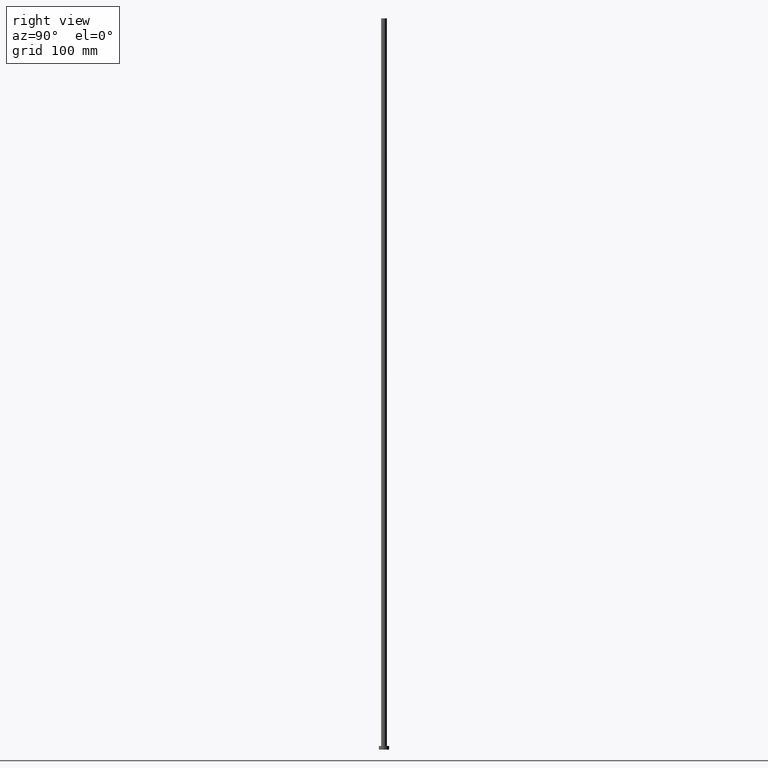
[diagram: clean part render]
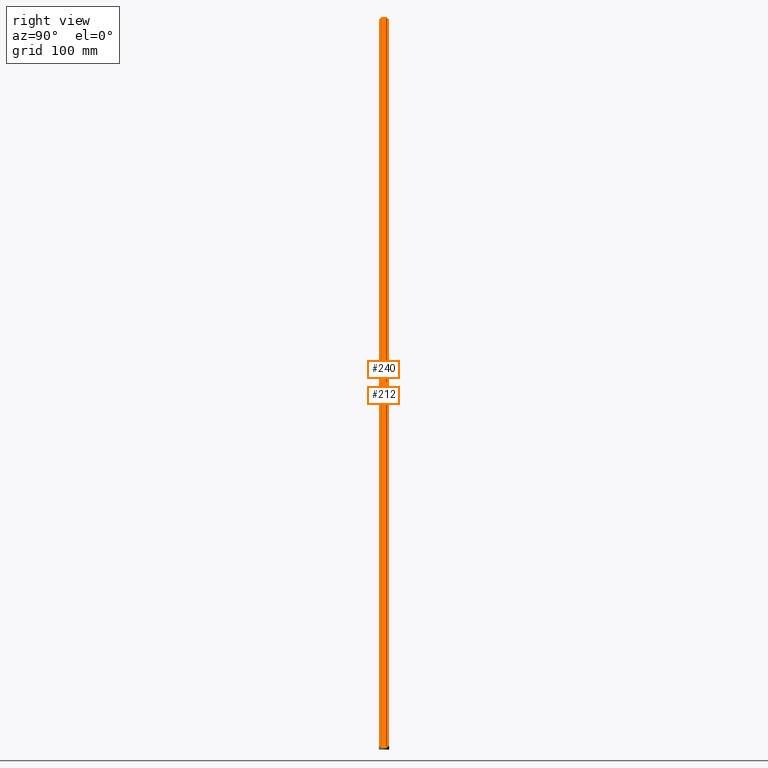
[diagram: same view with one multi-face feature highlighted, each face labeled with its STEP entity id]
A machine part, right view. The highlighted faces form ONE feature: a constant-radius fillet chain: 2 tangent blend faces with common blend radius 4 mm. The faces share edges in the B-rep.
Their STEP definitions:
[1] entity #240 (Cylinder):
#7 = CARTESIAN_POINT ( 'NONE',  ( 0.000000000000000000, 0.000000000000000000, 1000.000000000000000 ) ) ;
#14 = FACE_OUTER_BOUND ( 'NONE', #57, .T. ) ;
#17 = CIRCLE ( 'NONE', #30, 4.000000000000000000 ) ;
#30 = AXIS2_PLACEMENT_3D ( 'NONE', #49, #226, #172 ) ;
#37 = LINE ( 'NONE', #71, #145 ) ;
#44 = VERTEX_POINT ( 'NONE', #136 ) ;
#49 = CARTESIAN_POINT ( 'NONE',  ( 0.000000000000000000, 0.000000000000000000, 5.000000000000000000 ) ) ;
#55 = LINE ( 'NONE', #209, #63 ) ;
#57 = EDGE_LOOP ( 'NONE', ( #239, #217, #175, #237 ) ) ;
#63 = VECTOR ( 'NONE', #128, 1000.000000000000000 ) ;
#71 = CARTESIAN_POINT ( 'NONE',  ( -4.000000000000000000, 0.000000000000000000, 1000.000000000000000 ) ) ;
#76 = DIRECTION ( 'NONE',  ( 0.000000000000000000, 0.000000000000000000, 1.000000000000000000 ) ) ;
#82 = AXIS2_PLACEMENT_3D ( 'NONE', #7, #147, #231 ) ;
#92 = EDGE_CURVE ( 'NONE', #44, #139, #218, .T. ) ;
#94 = CARTESIAN_POINT ( 'NONE',  ( -4.000000000000000000, 0.000000000000000000, 5.000000000000000000 ) ) ;
#112 = AXIS2_PLACEMENT_3D ( 'NONE', #115, #76, #188 ) ;
#115 = CARTESIAN_POINT ( 'NONE',  ( 0.000000000000000000, 0.000000000000000000, 1000.000000000000000 ) ) ;
#117 = CARTESIAN_POINT ( 'NONE',  ( 4.000000000000000000, 4.898587196589411843E-16, 5.000000000000000000 ) ) ;
#128 = DIRECTION ( 'NONE',  ( -0.000000000000000000, -0.000000000000000000, -1.000000000000000000 ) ) ;
#132 = VERTEX_POINT ( 'NONE', #117 ) ;
#136 = CARTESIAN_POINT ( 'NONE',  ( -4.000000000000000000, 0.000000000000000000, 1000.000000000000000 ) ) ;
#139 = VERTEX_POINT ( 'NONE', #169 ) ;
#144 = EDGE_CURVE ( 'NONE', #139, #132, #55, .T. ) ;
#145 = VECTOR ( 'NONE', #245, 1000.000000000000000 ) ;
#147 = DIRECTION ( 'NONE',  ( -0.000000000000000000, -0.000000000000000000, -1.000000000000000000 ) ) ;
#148 = EDGE_CURVE ( 'NONE', #44, #186, #37, .T. ) ;
#169 = CARTESIAN_POINT ( 'NONE',  ( 4.000000000000000000, 4.898587196589411843E-16, 1000.000000000000000 ) ) ;
#172 = DIRECTION ( 'NONE',  ( 1.000000000000000000, 0.000000000000000000, 0.000000000000000000 ) ) ;
#175 = ORIENTED_EDGE ( 'NONE', *, *, #148, .T. ) ;
#186 = VERTEX_POINT ( 'NONE', #94 ) ;
#188 = DIRECTION ( 'NONE',  ( 1.000000000000000000, 0.000000000000000000, 0.000000000000000000 ) ) ;
#190 = EDGE_CURVE ( 'NONE', #186, #132, #17, .T. ) ;
#209 = CARTESIAN_POINT ( 'NONE',  ( 4.000000000000000000, 4.898587196589411843E-16, 1000.000000000000000 ) ) ;
#217 = ORIENTED_EDGE ( 'NONE', *, *, #92, .F. ) ;
#218 = CIRCLE ( 'NONE', #112, 4.000000000000000000 ) ;
#226 = DIRECTION ( 'NONE',  ( 0.000000000000000000, 0.000000000000000000, 1.000000000000000000 ) ) ;
#231 = DIRECTION ( 'NONE',  ( -1.000000000000000000, 0.000000000000000000, 0.000000000000000000 ) ) ;
#235 = CYLINDRICAL_SURFACE ( 'NONE', #82, 4.000000000000000000 ) ;
#237 = ORIENTED_EDGE ( 'NONE', *, *, #190, .T. ) ;
#239 = ORIENTED_EDGE ( 'NONE', *, *, #144, .F. ) ;
#240 = ADVANCED_FACE ( 'NONE', ( #14 ), #235, .T. ) ;
#245 = DIRECTION ( 'NONE',  ( -0.000000000000000000, -0.000000000000000000, -1.000000000000000000 ) ) ;
[2] entity #212 (Cylinder):
#15 = AXIS2_PLACEMENT_3D ( 'NONE', #176, #127, #87 ) ;
#37 = LINE ( 'NONE', #71, #145 ) ;
#40 = CARTESIAN_POINT ( 'NONE',  ( 0.000000000000000000, 0.000000000000000000, 1000.000000000000000 ) ) ;
#44 = VERTEX_POINT ( 'NONE', #136 ) ;
#45 = CARTESIAN_POINT ( 'NONE',  ( 0.000000000000000000, 0.000000000000000000, 5.000000000000000000 ) ) ;
#54 = ORIENTED_EDGE ( 'NONE', *, *, #247, .F. ) ;
#55 = LINE ( 'NONE', #209, #63 ) ;
#63 = VECTOR ( 'NONE', #128, 1000.000000000000000 ) ;
#71 = CARTESIAN_POINT ( 'NONE',  ( -4.000000000000000000, 0.000000000000000000, 1000.000000000000000 ) ) ;
#77 = DIRECTION ( 'NONE',  ( 0.000000000000000000, 0.000000000000000000, 1.000000000000000000 ) ) ;
#87 = DIRECTION ( 'NONE',  ( -1.000000000000000000, 0.000000000000000000, 0.000000000000000000 ) ) ;
#94 = CARTESIAN_POINT ( 'NONE',  ( -4.000000000000000000, 0.000000000000000000, 5.000000000000000000 ) ) ;
#105 = ORIENTED_EDGE ( 'NONE', *, *, #173, .T. ) ;
#117 = CARTESIAN_POINT ( 'NONE',  ( 4.000000000000000000, 4.898587196589411843E-16, 5.000000000000000000 ) ) ;
#127 = DIRECTION ( 'NONE',  ( -0.000000000000000000, -0.000000000000000000, -1.000000000000000000 ) ) ;
#128 = DIRECTION ( 'NONE',  ( -0.000000000000000000, -0.000000000000000000, -1.000000000000000000 ) ) ;
#129 = FACE_OUTER_BOUND ( 'NONE', #152, .T. ) ;
#132 = VERTEX_POINT ( 'NONE', #117 ) ;
#136 = CARTESIAN_POINT ( 'NONE',  ( -4.000000000000000000, 0.000000000000000000, 1000.000000000000000 ) ) ;
#139 = VERTEX_POINT ( 'NONE', #169 ) ;
#142 = DIRECTION ( 'NONE',  ( 0.000000000000000000, 0.000000000000000000, 1.000000000000000000 ) ) ;
#144 = EDGE_CURVE ( 'NONE', #139, #132, #55, .T. ) ;
#145 = VECTOR ( 'NONE', #245, 1000.000000000000000 ) ;
#148 = EDGE_CURVE ( 'NONE', #44, #186, #37, .T. ) ;
#151 = AXIS2_PLACEMENT_3D ( 'NONE', #40, #77, #250 ) ;
#152 = EDGE_LOOP ( 'NONE', ( #54, #179, #105, #229 ) ) ;
#169 = CARTESIAN_POINT ( 'NONE',  ( 4.000000000000000000, 4.898587196589411843E-16, 1000.000000000000000 ) ) ;
#173 = EDGE_CURVE ( 'NONE', #132, #186, #184, .T. ) ;
#176 = CARTESIAN_POINT ( 'NONE',  ( 0.000000000000000000, 0.000000000000000000, 1000.000000000000000 ) ) ;
#179 = ORIENTED_EDGE ( 'NONE', *, *, #144, .T. ) ;
#184 = CIRCLE ( 'NONE', #241, 4.000000000000000000 ) ;
#186 = VERTEX_POINT ( 'NONE', #94 ) ;
#196 = CIRCLE ( 'NONE', #151, 4.000000000000000000 ) ;
#198 = CYLINDRICAL_SURFACE ( 'NONE', #15, 4.000000000000000000 ) ;
#209 = CARTESIAN_POINT ( 'NONE',  ( 4.000000000000000000, 4.898587196589411843E-16, 1000.000000000000000 ) ) ;
#211 = DIRECTION ( 'NONE',  ( 1.000000000000000000, 0.000000000000000000, 0.000000000000000000 ) ) ;
#212 = ADVANCED_FACE ( 'NONE', ( #129 ), #198, .T. ) ;
#229 = ORIENTED_EDGE ( 'NONE', *, *, #148, .F. ) ;
#241 = AXIS2_PLACEMENT_3D ( 'NONE', #45, #142, #211 ) ;
#245 = DIRECTION ( 'NONE',  ( -0.000000000000000000, -0.000000000000000000, -1.000000000000000000 ) ) ;
#247 = EDGE_CURVE ( 'NONE', #139, #44, #196, .T. ) ;
#250 = DIRECTION ( 'NONE',  ( 1.000000000000000000, 0.000000000000000000, 0.000000000000000000 ) ) ;